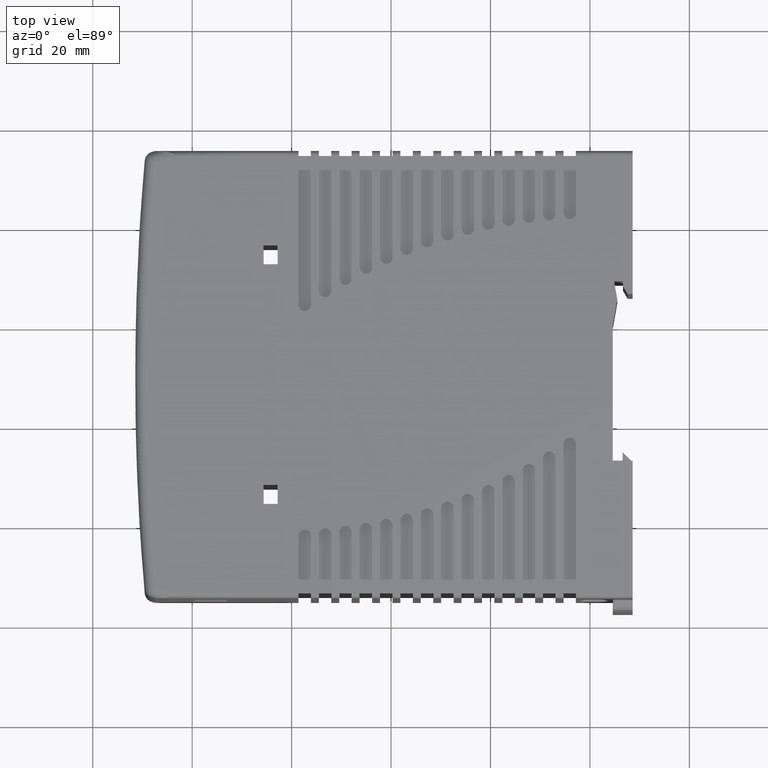
[diagram: clean part render]
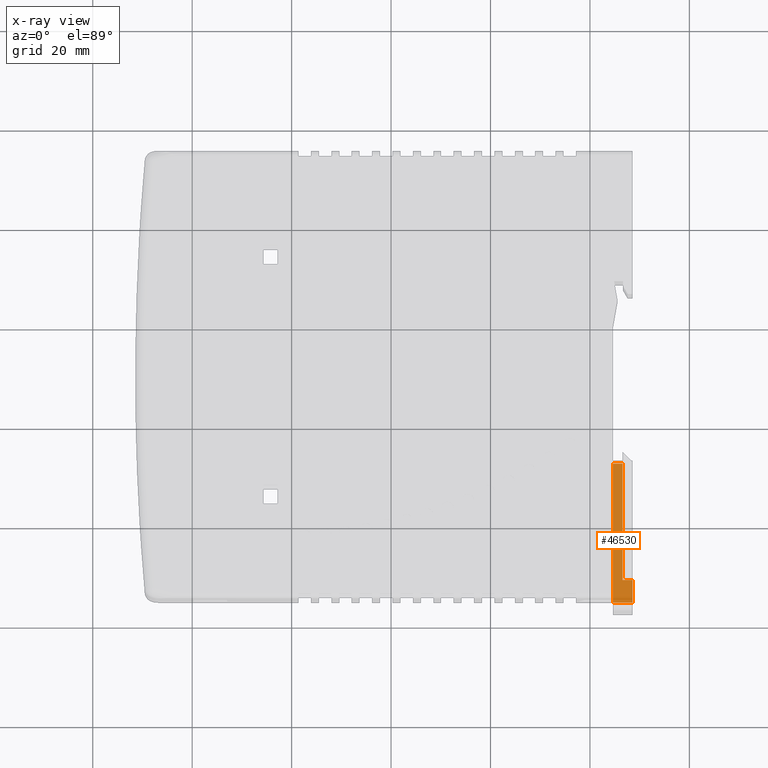
[diagram: x-ray — body ghosted, one internal face saturated and labeled with its STEP entity id]
A machine part, top view, then the same camera in x-ray: the body is ghosted and one INTERNAL B-rep face — a face not visible from any outside direction — is saturated and labeled: STEP entity #46530.
In plain terms, the highlighted planar face has unit normal (-0, -0, -1).
Its self-contained STEP definition (entity closure, byte-faithful):
#46021=CARTESIAN_POINT('',(-11.908452364271414,-21.749024676225822,2.0));
#46022=VERTEX_POINT('',#46021);
#46029=CARTESIAN_POINT('',(-11.908452364271414,-21.749024676225822,0.0));
#46030=VERTEX_POINT('',#46029);
#46031=CARTESIAN_POINT('',(-11.908452364271414,-21.749024676225822,0.0));
#46032=DIRECTION('',(0.0,0.0,1.0));
#46033=VECTOR('',#46032,2.0);
#46034=LINE('',#46031,#46033);
#46035=EDGE_CURVE('',#46030,#46022,#46034,.T.);
#46138=CARTESIAN_POINT('',(-11.908452364271422,1.650975323774175,2.0));
#46139=VERTEX_POINT('',#46138);
#46140=CARTESIAN_POINT('',(-11.908452364271414,-21.749024676225822,2.0));
#46141=DIRECTION('',(0.0,1.0,0.0));
#46142=VECTOR('',#46141,23.399999999999999);
#46143=LINE('',#46140,#46142);
#46144=EDGE_CURVE('',#46022,#46139,#46143,.T.);
#46194=CARTESIAN_POINT('',(-11.908452364271422,1.650975323774175,4.0));
#46195=VERTEX_POINT('',#46194);
#46196=CARTESIAN_POINT('',(-11.908452364271422,1.650975323774175,2.0));
#46197=DIRECTION('',(0.0,0.0,1.0));
#46198=VECTOR('',#46197,2.0);
#46199=LINE('',#46196,#46198);
#46200=EDGE_CURVE('',#46139,#46195,#46199,.T.);
#46331=CARTESIAN_POINT('',(-11.908452364271424,6.149059450853947,4.0));
#46332=VERTEX_POINT('',#46331);
#46340=CARTESIAN_POINT('',(-11.908452364271422,1.650975323774175,4.0));
#46341=DIRECTION('',(0.0,1.0,0.0));
#46342=VECTOR('',#46341,4.498084127079771);
#46343=LINE('',#46340,#46342);
#46344=EDGE_CURVE('',#46195,#46332,#46343,.T.);
#46505=CARTESIAN_POINT('',(-11.908452364271414,-21.749024676225822,0.0));
#46506=DIRECTION('',(-1.0,0.0,0.0));
#46507=DIRECTION('',(0.0,0.0,1.0));
#46508=AXIS2_PLACEMENT_3D('',#46505,#46506,#46507);
#46509=PLANE('',#46508);
#46510=ORIENTED_EDGE('',*,*,#46200,.T.);
#46511=ORIENTED_EDGE('',*,*,#46344,.T.);
#46512=CARTESIAN_POINT('',(-11.908452364271424,6.149059450853947,0.0));
#46513=VERTEX_POINT('',#46512);
#46514=CARTESIAN_POINT('',(-11.908452364271424,6.149059450853947,0.0));
#46515=DIRECTION('',(0.0,0.0,1.0));
#46516=VECTOR('',#46515,4.0);
#46517=LINE('',#46514,#46516);
#46518=EDGE_CURVE('',#46513,#46332,#46517,.T.);
#46519=ORIENTED_EDGE('',*,*,#46518,.F.);
#46520=CARTESIAN_POINT('',(-11.908452364271424,6.149059450853947,0.0));
#46521=DIRECTION('',(0.0,-1.0,0.0));
#46522=VECTOR('',#46521,27.898084127079770);
#46523=LINE('',#46520,#46522);
#46524=EDGE_CURVE('',#46513,#46030,#46523,.T.);
#46525=ORIENTED_EDGE('',*,*,#46524,.T.);
#46526=ORIENTED_EDGE('',*,*,#46035,.T.);
#46527=ORIENTED_EDGE('',*,*,#46144,.T.);
#46528=EDGE_LOOP('',(#46510,#46511,#46519,#46525,#46526,#46527));
#46529=FACE_OUTER_BOUND('',#46528,.T.);
#46530=ADVANCED_FACE('',(#46529),#46509,.T.);